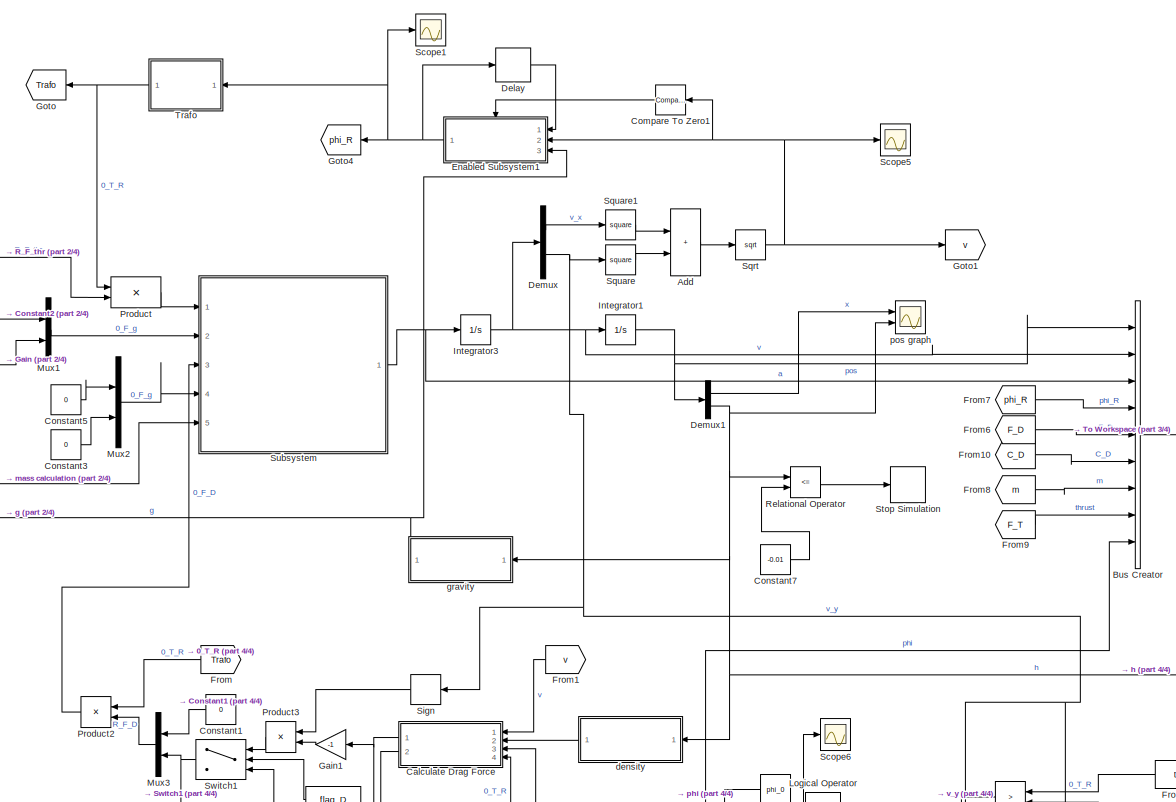
[diagram: root canvas - part 1/4, top center region]
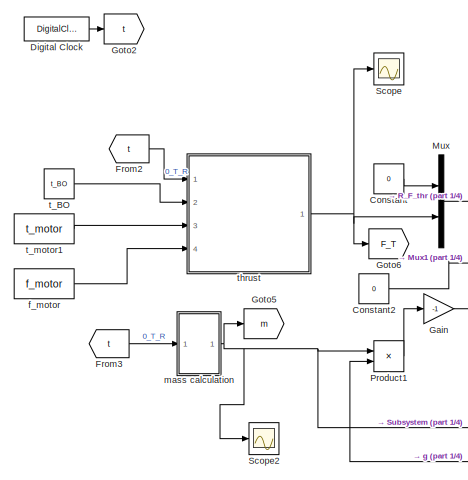
[diagram: root canvas - part 2/4, top left region]
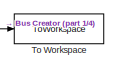
[diagram: root canvas - part 3/4, top right region]
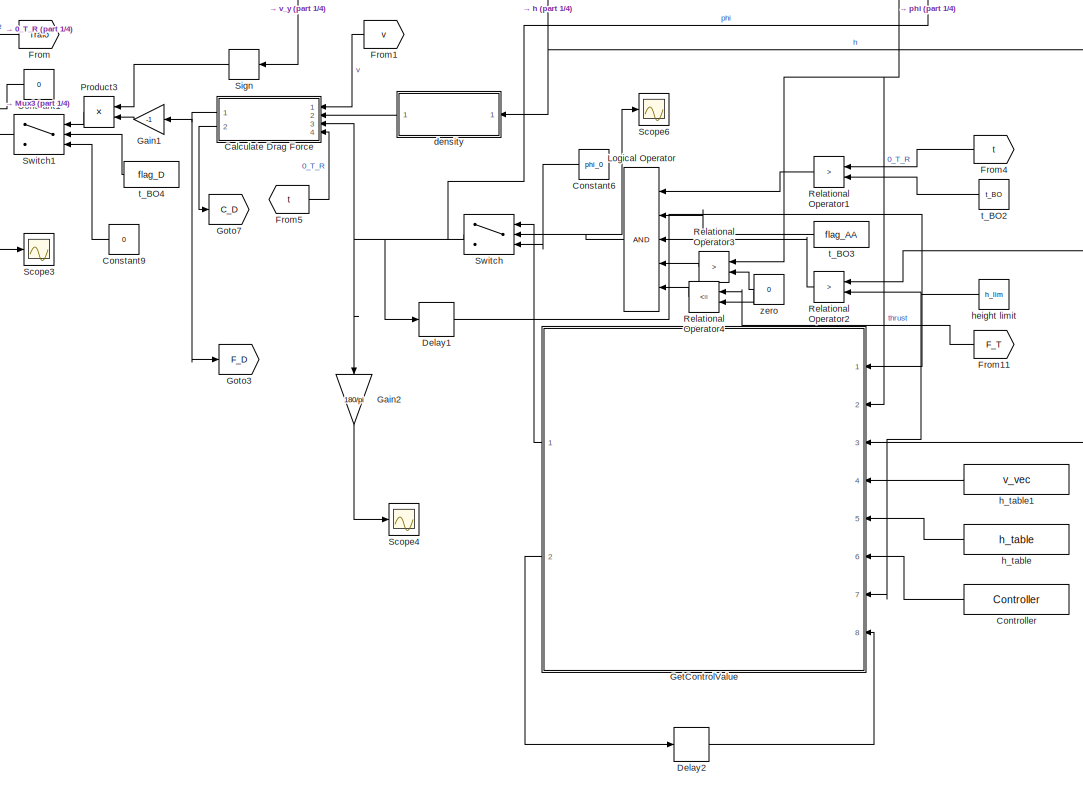
[diagram: root canvas - part 4/4, bottom center region]
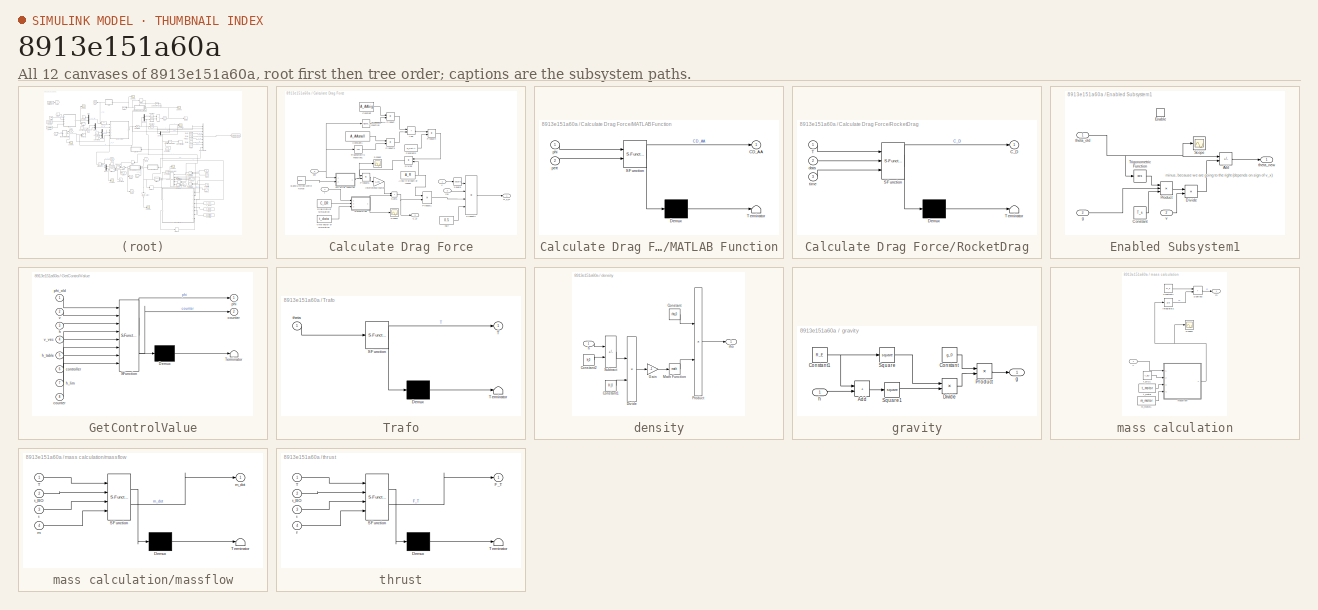
[diagram: thumbnail index - all 12 canvases of the model, root first then tree order]
MODEL slx_8913e151a60a
KIND model
CONFIG AbsTol = auto
CONFIG EnableMultiTasking = off
CONFIG FixedStep = auto
CONFIG MaxStep = auto
CONFIG MinStep = auto
CONFIG RelTol = 1e-3
CONFIG SampleTimeConstraint = Unconstrained
CONFIG SolverName = VariableStepAuto
CONFIG StartTime = 0.0
CONFIG StopTime = 100
BLOCK [Sum] Add
  IconShape = rectangular
  Ports = [2, 1]
BLOCK [BusCreator] Bus Creator
  DisplayOption = bar
  InheritFromInputs = on
  Inputs = 9
  Ports = [9, 1]
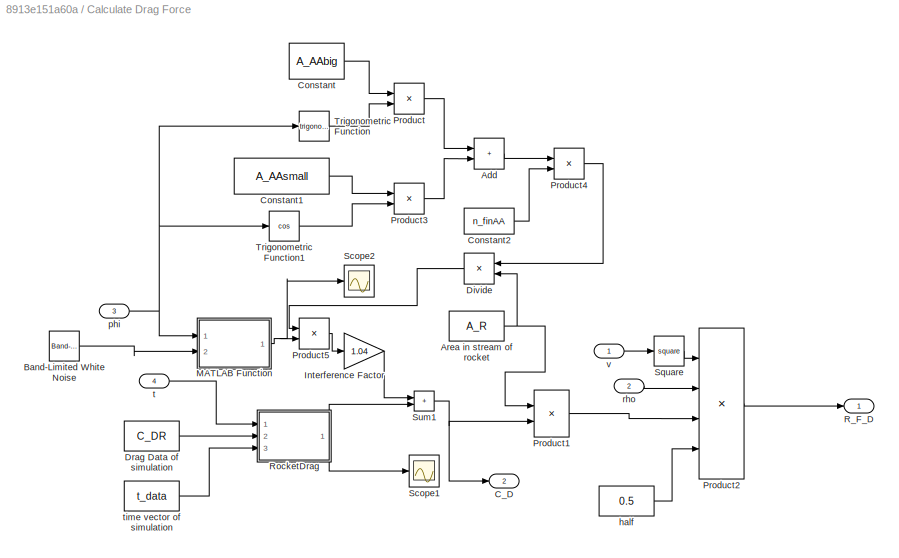
BLOCK [SubSystem] Calculate Drag Force
  Ports = [4, 2]
  RequestExecContextInheritance = off
BLOCK [Sum] Calculate Drag Force/Add
  IconShape = rectangular
  Ports = [2, 1]
BLOCK [Constant] Calculate Drag Force/Area in stream of rocket
  Value = A_R
BLOCK [Reference] Calculate Drag Force/Band-Limited White Noise  REF=simulink/Sources/Band-Limited
White Noise
  Ports = [0, 1]
  SourceBlock = simulink/Sources/Band-Limited\nWhite Noise
  SourceProductBaseCode = SL
  SourceType = Band-Limited White Noise.
BLOCK [Outport] Calculate Drag Force/C_D
  Port = 2
BLOCK [Constant] Calculate Drag Force/Constant
  Value = A_AAbig
BLOCK [Constant] Calculate Drag Force/Constant1
  Value = A_AAsmall
BLOCK [Constant] Calculate Drag Force/Constant2
  Value = n_finAA
BLOCK [Product] Calculate Drag Force/Divide
  Inputs = */
  Ports = [2, 1]
BLOCK [Constant] Calculate Drag Force/Drag Data of simulation
  Value = C_DR
BLOCK [Gain] Calculate Drag Force/Interference Factor
  Gain = 1.04
BLOCK [SubSystem] Calculate Drag Force/MATLAB Function
  ErrorFcn = Stateflow.Translate.translate
  PermitHierarchicalResolution = ExplicitOnly
  Ports = [2, 1]
  RequestExecContextInheritance = off
  SFBlockType = MATLAB Function
  TreatAsAtomicUnit = on
BLOCK [Demux] Calculate Drag Force/MATLAB Function/ Demux 
  Outputs = 1
  Ports = [1, 1]
BLOCK [S-Function] Calculate Drag Force/MATLAB Function/ SFunction 
  EnableBusSupport = on
  FunctionName = sf_sfun
  PortCounts = [2 2]
  Ports = [2, 2]
  SFcnIsStateOwnerBlock = off
  SFunctionDeploymentMode = off
  Tag = Stateflow S-Function 4
BLOCK [Terminator] Calculate Drag Force/MATLAB Function/ Terminator 
BLOCK [Outport] Calculate Drag Force/MATLAB Function/CD_AA
BLOCK [Inport] Calculate Drag Force/MATLAB Function/pert
  Port = 2
BLOCK [Inport] Calculate Drag Force/MATLAB Function/phi
BLOCK [Product] Calculate Drag Force/Product
  Ports = [2, 1]
BLOCK [Product] Calculate Drag Force/Product1
  Ports = [2, 1]
BLOCK [Product] Calculate Drag Force/Product2
  Inputs = 4
  Ports = [4, 1]
BLOCK [Product] Calculate Drag Force/Product3
  Ports = [2, 1]
BLOCK [Product] Calculate Drag Force/Product4
  Ports = [2, 1]
BLOCK [Product] Calculate Drag Force/Product5
  Ports = [2, 1]
BLOCK [Outport] Calculate Drag Force/R_F_D
BLOCK [SubSystem] Calculate Drag Force/RocketDrag
  ErrorFcn = Stateflow.Translate.translate
  PermitHierarchicalResolution = ExplicitOnly
  Ports = [3, 1]
  RequestExecContextInheritance = off
  SFBlockType = MATLAB Function
  TreatAsAtomicUnit = on
BLOCK [Demux] Calculate Drag Force/RocketDrag/ Demux 
  Outputs = 1
  Ports = [1, 1]
BLOCK [S-Function] Calculate Drag Force/RocketDrag/ SFunction 
  EnableBusSupport = on
  FunctionName = sf_sfun
  PortCounts = [3 2]
  Ports = [3, 2]
  SFcnIsStateOwnerBlock = off
  SFunctionDeploymentMode = off
  Tag = Stateflow S-Function 5
BLOCK [Terminator] Calculate Drag Force/RocketDrag/ Terminator 
BLOCK [Outport] Calculate Drag Force/RocketDrag/C_D
BLOCK [Inport] Calculate Drag Force/RocketDrag/T
BLOCK [Inport] Calculate Drag Force/RocketDrag/data
  Port = 2
BLOCK [Inport] Calculate Drag Force/RocketDrag/time
  Port = 3
BLOCK [Scope] Calculate Drag Force/Scope1
  Floating = off
  NumInputPorts = 1
  Ports = [1]
  ScopeSpecificationString = Simulink.scopes.TimeScopeBlockCfg('CurrentConfiguration', extmgr.ConfigurationSet(extmgr.Configuration('Core','General UI',true),extmgr.Configuration('Core','Source UI',true),extmgr.Configuration('Sources','WiredSimulink',true,'DataLoggingVariableName','ScopeData2'),extmgr.Configuration('Visuals','Time Domain',true,'SerializedDisplays',{struct('MinYLimReal','-1.96198','MaxYLimReal','1.96313','YLab...<+1453ch>
BLOCK [Scope] Calculate Drag Force/Scope2
  Floating = off
  NumInputPorts = 1
  Ports = [1]
  ScopeSpecificationString = Simulink.scopes.TimeScopeBlockCfg('CurrentConfiguration', extmgr.ConfigurationSet(extmgr.Configuration('Core','General UI',true),extmgr.Configuration('Core','Source UI',true),extmgr.Configuration('Sources','WiredSimulink',true,'DataLoggingVariableName','ScopeData1'),extmgr.Configuration('Visuals','Time Domain',true,'SerializedDisplays',{struct('MinYLimReal','-1.96198','MaxYLimReal','1.96313','YLab...<+1476ch>
BLOCK [Math] Calculate Drag Force/Square
  Operator = square
  Ports = [1, 1]
BLOCK [Sum] Calculate Drag Force/Sum1
  IconShape = rectangular
  Ports = [2, 1]
BLOCK [Trigonometry] Calculate Drag Force/Trigonometric Function
  Ports = [1, 1]
BLOCK [Trigonometry] Calculate Drag Force/Trigonometric Function1
  Operator = cos
  Ports = [1, 1]
BLOCK [Constant] Calculate Drag Force/half
  Value = 0.5
BLOCK [Inport] Calculate Drag Force/phi
  Port = 3
BLOCK [Inport] Calculate Drag Force/rho
  Port = 2
BLOCK [Inport] Calculate Drag Force/t
  Port = 4
BLOCK [Constant] Calculate Drag Force/time vector of simulation
  Value = t_data
BLOCK [Inport] Calculate Drag Force/v
BLOCK [Reference] Compare To Zero1  REF=simulink/Logic and Bit
Operations/Compare
To Zero
  Ports = [1, 1]
  SourceBlock = simulink/Logic and Bit\nOperations/Compare\nTo Zero
  SourceProductBaseCode = SL
  SourceType = Compare To Zero
BLOCK [Constant] Constant
  Value = 0
BLOCK [Constant] Constant1
  Value = 0
BLOCK [Constant] Constant2
  Value = 0
BLOCK [Constant] Constant3
  Value = 0
BLOCK [Constant] Constant5
  Value = 0
BLOCK [Constant] Constant6
  Value = phi_0
BLOCK [Constant] Constant7
  Value = -0.01
BLOCK [Constant] Constant9
  Value = 0
BLOCK [Constant] Controller
  Value = Controller
BLOCK [Delay] Delay
  DelayLength = 1
  InitialCondition = 0
  InputPortMap = u0
  Ports = [1, 1]
BLOCK [Delay] Delay1
  DelayLength = 1
  InitialCondition = 0
  InputPortMap = u0
  Ports = [1, 1]
BLOCK [Delay] Delay2
  DelayLength = 1
  InitialCondition = 0
  InputPortMap = u0
  Ports = [1, 1]
BLOCK [Demux] Demux
  Outputs = 2
  Ports = [1, 2]
BLOCK [Demux] Demux1
  Outputs = 2
  Ports = [1, 2]
BLOCK [DigitalClock] Digital Clock
  SampleTime = T_s
BLOCK [SubSystem] Enabled Subsystem1
  Ports = [3, 1, 1]
  RequestExecContextInheritance = off
  TreatAsAtomicUnit = on
BLOCK [Sum] Enabled Subsystem1/Add
  IconShape = rectangular
  Inputs = +-
  Ports = [2, 1]
BLOCK [Constant] Enabled Subsystem1/Constant
  Value = T_s
BLOCK [Product] Enabled Subsystem1/Divide
  Inputs = */
  Ports = [2, 1]
BLOCK [EnablePort] Enabled Subsystem1/Enable
  Ports = []
BLOCK [Product] Enabled Subsystem1/Product
  Inputs = 3
  Ports = [3, 1]
BLOCK [Scope] Enabled Subsystem1/Scope
  Floating = off
  NumInputPorts = 1
  Ports = [1]
  ScopeSpecificationString = Simulink.scopes.TimeScopeBlockCfg('CurrentConfiguration', extmgr.ConfigurationSet(extmgr.Configuration('Core','General UI',true),extmgr.Configuration('Core','Source UI',true),extmgr.Configuration('Sources','WiredSimulink',true,'DataLoggingVariableName','ScopeData3'),extmgr.Configuration('Visuals','Time Domain',true,'SerializedDisplays',{struct('MinYLimReal','1.54229','MaxYLimReal','1.60916','YLabe...<+1410ch>
BLOCK [Trigonometry] Enabled Subsystem1/Trigonometric Function
  Operator = cos
  Ports = [1, 1]
BLOCK [Inport] Enabled Subsystem1/g
  Port = 3
BLOCK [Outport] Enabled Subsystem1/theta_new
  InitialOutput = theta_0
BLOCK [Inport] Enabled Subsystem1/theta_old
  NameLocation = top
BLOCK [Inport] Enabled Subsystem1/v
  Port = 2
BLOCK [From] From
  GotoTag = Trafo
BLOCK [From] From1
  GotoTag = v
BLOCK [From] From10
  GotoTag = C_D
BLOCK [From] From11
  GotoTag = F_T
BLOCK [From] From2
  GotoTag = t
BLOCK [From] From3
  GotoTag = t
BLOCK [From] From4
  GotoTag = t
BLOCK [From] From5
  GotoTag = t
BLOCK [From] From6
  GotoTag = F_D
BLOCK [From] From7
  GotoTag = phi_R
BLOCK [From] From8
  GotoTag = m
BLOCK [From] From9
  GotoTag = F_T
BLOCK [Gain] Gain
  Gain = -1
BLOCK [Gain] Gain1
  Gain = -1
BLOCK [Gain] Gain2
  Gain = 180/pi
  NameLocation = left
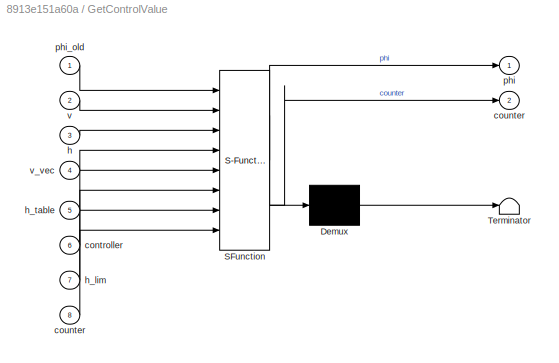
BLOCK [SubSystem] GetControlValue
  ErrorFcn = Stateflow.Translate.translate
  PermitHierarchicalResolution = ExplicitOnly
  Ports = [8, 2]
  RequestExecContextInheritance = off
  SFBlockType = MATLAB Function
  TreatAsAtomicUnit = on
BLOCK [Demux] GetControlValue/ Demux 
  Outputs = 1
  Ports = [1, 1]
BLOCK [S-Function] GetControlValue/ SFunction 
  EnableBusSupport = on
  FunctionName = sf_sfun
  PortCounts = [8 3]
  Ports = [8, 3]
  SFcnIsStateOwnerBlock = off
  SFunctionDeploymentMode = off
  Tag = Stateflow S-Function 6
BLOCK [Terminator] GetControlValue/ Terminator 
BLOCK [Inport] GetControlValue/controller
  Port = 6
BLOCK [Outport] GetControlValue/counter
  Port = 2
BLOCK [Inport] GetControlValue/counter 
  Port = 8
BLOCK [Inport] GetControlValue/h
  Port = 3
BLOCK [Inport] GetControlValue/h_lim
  Port = 7
BLOCK [Inport] GetControlValue/h_table
  Port = 5
BLOCK [Outport] GetControlValue/phi
BLOCK [Inport] GetControlValue/phi_old
BLOCK [Inport] GetControlValue/v
  Port = 2
BLOCK [Inport] GetControlValue/v_vec
  Port = 4
BLOCK [Goto] Goto
  GotoTag = Trafo
BLOCK [Goto] Goto1
  GotoTag = v
BLOCK [Goto] Goto2
  GotoTag = t
BLOCK [Goto] Goto3
  GotoTag = F_D
BLOCK [Goto] Goto4
  GotoTag = phi_R
BLOCK [Goto] Goto5
  GotoTag = m
BLOCK [Goto] Goto6
  GotoTag = F_T
BLOCK [Goto] Goto7
  GotoTag = C_D
BLOCK [Integrator] Integrator1
  Ports = [1, 1]
BLOCK [Integrator] Integrator3
  Ports = [1, 1]
BLOCK [Logic] Logical Operator
  AllPortsSameDT = off
  Inputs = 5
  OutDataTypeStr = boolean
  Ports = [5, 1]
BLOCK [Mux] Mux
  DisplayOption = bar
  Inputs = 2
  Ports = [2, 1]
BLOCK [Mux] Mux1
  DisplayOption = bar
  Inputs = 2
  Ports = [2, 1]
BLOCK [Mux] Mux2
  DisplayOption = bar
  Inputs = 2
  Ports = [2, 1]
BLOCK [Mux] Mux3
  DisplayOption = bar
  Inputs = 2
  Ports = [2, 1]
BLOCK [Product] Product
  Multiplication = Matrix(*)
  Ports = [2, 1]
BLOCK [Product] Product1
  Ports = [2, 1]
BLOCK [Product] Product2
  Multiplication = Matrix(*)
  Ports = [2, 1]
BLOCK [Product] Product3
  Ports = [2, 1]
BLOCK [RelationalOperator] Relational Operator
  InputSameDT = off
  Operator = <=
  OutDataTypeStr = boolean
  Ports = [2, 1]
  RndMeth = Simplest
BLOCK [RelationalOperator] Relational Operator1
  InputSameDT = off
  Operator = >
  OutDataTypeStr = boolean
  Ports = [2, 1]
  RndMeth = Simplest
BLOCK [RelationalOperator] Relational Operator2
  InputSameDT = off
  Operator = >
  OutDataTypeStr = boolean
  Ports = [2, 1]
  RndMeth = Simplest
BLOCK [RelationalOperator] Relational Operator3
  InputSameDT = off
  Operator = >
  OutDataTypeStr = boolean
  Ports = [2, 1]
  RndMeth = Simplest
BLOCK [RelationalOperator] Relational Operator4
  InputSameDT = off
  Operator = <=
  OutDataTypeStr = boolean
  Ports = [2, 1]
  RndMeth = Simplest
BLOCK [Scope] Scope
  Floating = off
  NumInputPorts = 1
  Ports = [1]
  ScopeSpecificationString = Simulink.scopes.TimeScopeBlockCfg('CurrentConfiguration', extmgr.ConfigurationSet(extmgr.Configuration('Core','General UI',true),extmgr.Configuration('Core','Source UI',true),extmgr.Configuration('Sources','WiredSimulink',true,'DataLoggingVariableName','ScopeData3'),extmgr.Configuration('Visuals','Time Domain',true,'SerializedDisplays',{struct('MinYLimReal','-587.24769','MaxYLimReal','5285.22921',...<+1427ch>
BLOCK [Scope] Scope1
  Floating = off
  NumInputPorts = 1
  Ports = [1]
  ScopeSpecificationString = Simulink.scopes.TimeScopeBlockCfg('CurrentConfiguration', extmgr.ConfigurationSet(extmgr.Configuration('Core','General UI',true),extmgr.Configuration('Core','Source UI',true),extmgr.Configuration('Sources','WiredSimulink',true,'DataLoggingVariableName','ScopeData4'),extmgr.Configuration('Visuals','Time Domain',true,'SerializedDisplays',{struct('MinYLimReal','-1.96198','MaxYLimReal','1.96313','YLab...<+1461ch>
BLOCK [Scope] Scope2
  Floating = off
  NumInputPorts = 1
  Ports = [1]
  ScopeSpecificationString = Simulink.scopes.TimeScopeBlockCfg('CurrentConfiguration', extmgr.ConfigurationSet(extmgr.Configuration('Core','General UI',true),extmgr.Configuration('Core','Source UI',true),extmgr.Configuration('Sources','WiredSimulink',true,'DataLoggingVariableName','ScopeData1'),extmgr.Configuration('Visuals','Time Domain',true,'SerializedDisplays',{struct('MinYLimReal','21.25369','MaxYLimReal','21.73727','YLa...<+1466ch>
BLOCK [Scope] Scope3
  Floating = off
  NumInputPorts = 1
  Ports = [1]
  ScopeSpecificationString = Simulink.scopes.TimeScopeBlockCfg('CurrentConfiguration', extmgr.ConfigurationSet(extmgr.Configuration('Core','General UI',true),extmgr.Configuration('Core','Source UI',true),extmgr.Configuration('Sources','WiredSimulink',true,'DataLoggingVariableName','ScopeData3'),extmgr.Configuration('Visuals','Time Domain',true,'SerializedDisplays',{struct('MinYLimReal','-4167.88576','MaxYLimReal','699.93277',...<+1471ch>
BLOCK [Scope] Scope4
  Floating = off
  NumInputPorts = 1
  Ports = [1]
  ScopeSpecificationString = Simulink.scopes.TimeScopeBlockCfg('CurrentConfiguration', extmgr.ConfigurationSet(extmgr.Configuration('Core','General UI',true),extmgr.Configuration('Core','Source UI',true),extmgr.Configuration('Sources','WiredSimulink',true,'DataLoggingVariableName','ScopeData1'),extmgr.Configuration('Visuals','Time Domain',true,'SerializedDisplays',{struct('MinYLimReal','-1.00000','MaxYLimReal','1.00000','YLab...<+1518ch>
BLOCK [Scope] Scope5
  Floating = off
  NumInputPorts = 1
  Ports = [1]
  ScopeSpecificationString = Simulink.scopes.TimeScopeBlockCfg('CurrentConfiguration', extmgr.ConfigurationSet(extmgr.Configuration('Core','General UI',true),extmgr.Configuration('Core','Source UI',true),extmgr.Configuration('Sources','WiredSimulink',true,'DataLoggingVariableName','ScopeData1'),extmgr.Configuration('Visuals','Time Domain',true,'SerializedDisplays',{struct('MinYLimReal','-73.96891','MaxYLimReal','665.72021','Y...<+1457ch>
BLOCK [Scope] Scope6
  Floating = off
  NumInputPorts = 1
  Ports = [1]
  ScopeSpecificationString = Simulink.scopes.TimeScopeBlockCfg('CurrentConfiguration', extmgr.ConfigurationSet(extmgr.Configuration('Core','General UI',true),extmgr.Configuration('Core','Source UI',true),extmgr.Configuration('Sources','WiredSimulink',true,'DataLoggingVariableName','ScopeData1'),extmgr.Configuration('Visuals','Time Domain',true,'SerializedDisplays',{struct('MinYLimReal','-1.00000','MaxYLimReal','1.00000','YLab...<+1484ch>
BLOCK [Signum] Sign
BLOCK [Sqrt] Sqrt
BLOCK [Math] Square
  Operator = square
  Ports = [1, 1]
BLOCK [Math] Square1
  Operator = square
  Ports = [1, 1]
BLOCK [Stop] Stop Simulation
BLOCK [SubSystem] Subsystem
  PortSchema = {"entries":[{"content":{"sides":[{"content":{"connectorIds":["In1","In2","In4","In3","In5"]},"type":"ConnectorPlacement.EquallySpacedRectSide","uuid":"9ef3e48b-891b-4d0d-a708-ee121c0097dd"},{"content":{"connectorIds":["Out1"],"side":"RIGHT"},"type":"ConnectorPlacement.EquallySpacedRectSide","uuid":"fe012b3b-856e-4c20-af45-176b50db60e5"},{"content":{"connectorIds":[],"side":"TOP"},"type":"Connector...<+264ch>
  Ports = [5, 1]
  ReferencedSubsystem = acceleration
  RequestExecContextInheritance = off
BLOCK [Switch] Switch
  Criteria = u2 ~= 0
  InputSameDT = off
  SaturateOnIntegerOverflow = off
BLOCK [Switch] Switch1
  Criteria = u2 > Threshold
  InputSameDT = off
  SaturateOnIntegerOverflow = off
BLOCK [ToWorkspace] To Workspace
  FixptAsFi = on
  MaxDataPoints = inf
  Ports = [1]
  SampleTime = -1
  SaveFormat = Timeseries
  VariableName = SimData
BLOCK [SubSystem] Trafo
  ErrorFcn = Stateflow.Translate.translate
  PermitHierarchicalResolution = ExplicitOnly
  Ports = [1, 1]
  RequestExecContextInheritance = off
  SFBlockType = MATLAB Function
  TreatAsAtomicUnit = on
BLOCK [Demux] Trafo/ Demux 
  Outputs = 1
  Ports = [1, 1]
BLOCK [S-Function] Trafo/ SFunction 
  EnableBusSupport = on
  FunctionName = sf_sfun
  PortCounts = [1 2]
  Ports = [1, 2]
  SFcnIsStateOwnerBlock = off
  SFunctionDeploymentMode = off
  Tag = Stateflow S-Function 3
BLOCK [Terminator] Trafo/ Terminator 
BLOCK [Outport] Trafo/T
BLOCK [Inport] Trafo/theta
BLOCK [SubSystem] density
  Ports = [1, 1]
  RequestExecContextInheritance = off
BLOCK [Constant] density/Constant
  Value = rho_0
  VectorParams1D = off
BLOCK [Constant] density/Constant1
  Value = H_0
  VectorParams1D = off
BLOCK [Constant] density/Constant2
  Value = h_0
  VectorParams1D = off
BLOCK [Product] density/Divide
  Inputs = */
  Ports = [2, 1]
BLOCK [Gain] density/Gain
  Gain = -1
BLOCK [Math] density/Math Function
  Ports = [1, 1]
BLOCK [Product] density/Product
  Ports = [2, 1]
BLOCK [Sum] density/Subtract
  IconShape = rectangular
  Inputs = +-
  Ports = [2, 1]
BLOCK [Inport] density/h
BLOCK [Outport] density/rho
BLOCK [Constant] f_motor
  Value = f_motor
BLOCK [SubSystem] gravity
  Ports = [1, 1]
  RequestExecContextInheritance = off
BLOCK [Sum] gravity/Add
  IconShape = rectangular
  Ports = [2, 1]
BLOCK [Constant] gravity/Constant
  Value = g_0
BLOCK [Constant] gravity/Constant1
  Value = R_E
BLOCK [Product] gravity/Divide
  Inputs = */
  Ports = [2, 1]
BLOCK [Product] gravity/Product
  Ports = [2, 1]
BLOCK [Math] gravity/Square
  Operator = square
  Ports = [1, 1]
BLOCK [Math] gravity/Square1
  Operator = square
  Ports = [1, 1]
BLOCK [Outport] gravity/g
BLOCK [Inport] gravity/h
BLOCK [Constant] h_table
  Value = h_table
BLOCK [Constant] h_table1
  Value = v_vec
BLOCK [Constant] height limit
  Value = h_lim
BLOCK [SubSystem] mass calculation
  Ports = [1, 1]
  RequestExecContextInheritance = off
BLOCK [Constant] mass calculation/Constant4
  Value = m_0
BLOCK [Integrator] mass calculation/Integrator2
  Ports = [1, 1]
BLOCK [Scope] mass calculation/Scope7
  Floating = off
  NumInputPorts = 1
  Ports = [1]
  ScopeSpecificationString = Simulink.scopes.TimeScopeBlockCfg('CurrentConfiguration', extmgr.ConfigurationSet(extmgr.Configuration('Core','General UI',true),extmgr.Configuration('Core','Source UI',true),extmgr.Configuration('Sources','WiredSimulink',true,'DataLoggingVariableName','ScopeData3'),extmgr.Configuration('Visuals','Time Domain',true,'SerializedDisplays',{struct('MinYLimReal','-2.54661','MaxYLimReal','-0.26724','YLa...<+1453ch>
BLOCK [Sum] mass calculation/Subtract
  IconShape = rectangular
  Ports = [2, 1]
BLOCK [Inport] mass calculation/T
BLOCK [Outport] mass calculation/m
BLOCK [Constant] mass calculation/m_motor1
  Value = m_motor
BLOCK [SubSystem] mass calculation/massflow
  ErrorFcn = Stateflow.Translate.translate
  PermitHierarchicalResolution = ExplicitOnly
  Ports = [4, 1]
  RequestExecContextInheritance = off
  SFBlockType = MATLAB Function
  TreatAsAtomicUnit = on
BLOCK [Demux] mass calculation/massflow/ Demux 
  Outputs = 1
  Ports = [1, 1]
BLOCK [S-Function] mass calculation/massflow/ SFunction 
  EnableBusSupport = on
  FunctionName = sf_sfun
  PortCounts = [4 2]
  Ports = [4, 2]
  SFcnIsStateOwnerBlock = off
  SFunctionDeploymentMode = off
  Tag = Stateflow S-Function 2
BLOCK [Terminator] mass calculation/massflow/ Terminator 
BLOCK [Inport] mass calculation/massflow/T
BLOCK [Inport] mass calculation/massflow/m
  Port = 4
BLOCK [Outport] mass calculation/massflow/m_dot
BLOCK [Inport] mass calculation/massflow/t
  Port = 3
BLOCK [Inport] mass calculation/massflow/t_BO
  Port = 2
BLOCK [Constant] mass calculation/t_BO1
  Value = t_BO
BLOCK [Constant] mass calculation/t_motor
  Value = t_motor
BLOCK [Scope] pos graph
  Floating = off
  NumInputPorts = 2
  Ports = [2]
  ScopeSpecificationString = Simulink.scopes.TimeScopeBlockCfg('CurrentConfiguration', extmgr.ConfigurationSet(extmgr.Configuration('Core','General UI',true),extmgr.Configuration('Core','Source UI',true),extmgr.Configuration('Sources','WiredSimulink',true),extmgr.Configuration('Visuals','Time Domain',true,'SerializedDisplays',{struct('MinYLimReal','-576.75651','MaxYLimReal','5190.80128','YLabelReal','','MinYLimMag',' 0.00000'...<+1459ch>
BLOCK [Constant] t_BO
  Value = t_BO
BLOCK [Constant] t_BO2
  Value = t_BO
BLOCK [Constant] t_BO3
  Value = flag_AA
BLOCK [Constant] t_BO4
  Value = flag_D
BLOCK [Constant] t_motor1
  Value = t_motor
BLOCK [SubSystem] thrust
  ErrorFcn = Stateflow.Translate.translate
  PermitHierarchicalResolution = ExplicitOnly
  Ports = [4, 1]
  RequestExecContextInheritance = off
  SFBlockType = MATLAB Function
  TreatAsAtomicUnit = on
BLOCK [Demux] thrust/ Demux 
  Outputs = 1
  Ports = [1, 1]
BLOCK [S-Function] thrust/ SFunction 
  EnableBusSupport = on
  FunctionName = sf_sfun
  PortCounts = [4 2]
  Ports = [4, 2]
  SFcnIsStateOwnerBlock = off
  SFunctionDeploymentMode = off
  Tag = Stateflow S-Function 1
BLOCK [Terminator] thrust/ Terminator 
BLOCK [Outport] thrust/F_T
BLOCK [Inport] thrust/T
BLOCK [Inport] thrust/f
  Port = 4
BLOCK [Inport] thrust/t
  Port = 3
BLOCK [Inport] thrust/t_BO
  Port = 2
BLOCK [Constant] zero
  Value = 0
ANNOTATION Enabled Subsystem1: minus, because we are going to the right (depends on sign of v_x)
LINE Add:1 -> Sqrt:1
LINE Bus Creator:1 -> To Workspace:1
LINE Calculate Drag Force/Add:1 -> Calculate Drag Force/Product4:1
NET Calculate Drag Force/Area in stream of rocket:1 -> Calculate Drag Force/Divide:2, Calculate Drag Force/Product1:1
LINE Calculate Drag Force/Band-Limited White Noise:1 -> Calculate Drag Force/MATLAB Function:2
LINE Calculate Drag Force/Constant1:1 -> Calculate Drag Force/Product3:1
LINE Calculate Drag Force/Constant2:1 -> Calculate Drag Force/Product4:2
LINE Calculate Drag Force/Constant:1 -> Calculate Drag Force/Product:1
LINE Calculate Drag Force/Divide:1 -> Calculate Drag Force/Product5:1
LINE Calculate Drag Force/Drag Data of simulation:1 -> Calculate Drag Force/RocketDrag:2
LINE Calculate Drag Force/Interference Factor:1 -> Calculate Drag Force/Sum1:1
NET Calculate Drag Force/MATLAB Function:1 -> Calculate Drag Force/Product5:2, Calculate Drag Force/Scope2:1
LINE Calculate Drag Force/Product1:1 -> Calculate Drag Force/Product2:3
LINE Calculate Drag Force/Product2:1 -> Calculate Drag Force/R_F_D:1
LINE Calculate Drag Force/Product3:1 -> Calculate Drag Force/Add:2
LINE Calculate Drag Force/Product4:1 -> Calculate Drag Force/Divide:1
LINE Calculate Drag Force/Product5:1 -> Calculate Drag Force/Interference Factor:1
LINE Calculate Drag Force/Product:1 -> Calculate Drag Force/Add:1
NET Calculate Drag Force/RocketDrag:1 -> Calculate Drag Force/Scope1:1, Calculate Drag Force/Sum1:2
LINE Calculate Drag Force/Square:1 -> Calculate Drag Force/Product2:1
NET Calculate Drag Force/Sum1:1 -> Calculate Drag Force/C_D:1, Calculate Drag Force/Product1:2
LINE Calculate Drag Force/Trigonometric Function1:1 -> Calculate Drag Force/Product3:2
LINE Calculate Drag Force/Trigonometric Function:1 -> Calculate Drag Force/Product:2
LINE Calculate Drag Force/half:1 -> Calculate Drag Force/Product2:4
NET Calculate Drag Force/phi:1 -> Calculate Drag Force/MATLAB Function:1, Calculate Drag Force/Trigonometric Function1:1, Calculate Drag Force/Trigonometric Function:1
LINE Calculate Drag Force/rho:1 -> Calculate Drag Force/Product2:2
LINE Calculate Drag Force/t:1 -> Calculate Drag Force/RocketDrag:1
LINE Calculate Drag Force/time vector of simulation:1 -> Calculate Drag Force/RocketDrag:3
LINE Calculate Drag Force/v:1 -> Calculate Drag Force/Square:1
NET Calculate Drag Force:1 -> Gain1:1, Goto3:1
LINE Calculate Drag Force:2 -> Goto7:1
LINE Compare To Zero1:1 -> Enabled Subsystem1:enable
LINE Constant1:1 -> Mux3:1
LINE Constant2:1 -> Mux1:1
LINE Constant3:1 -> Mux2:2
LINE Constant5:1 -> Mux2:1
LINE Constant6:1 -> Switch:3
LINE Constant7:1 -> Relational Operator:2
LINE Constant9:1 -> Switch1:3
LINE Constant:1 -> Mux:1
LINE Controller:1 -> GetControlValue:6
LINE Delay1:1 -> GetControlValue:1
LINE Delay2:1 -> GetControlValue:8
LINE Delay:1 -> Enabled Subsystem1:1
LINE Demux1:1 -> pos graph:1
NET Demux1:2 -> GetControlValue:3, Relational Operator2:1, Relational Operator:1, density:1, gravity:1, pos graph:2
LINE Demux:1 -> Square1:1
NET Demux:2 -> GetControlValue:2, Relational Operator3:1, Sign:1, Square:1
LINE Digital Clock:1 -> Goto2:1
LINE Enabled Subsystem1/Add:1 -> Enabled Subsystem1/theta_new:1
LINE Enabled Subsystem1/Constant:1 -> Enabled Subsystem1/Product:3
LINE Enabled Subsystem1/Divide:1 -> Enabled Subsystem1/Add:2
LINE Enabled Subsystem1/Product:1 -> Enabled Subsystem1/Divide:1
LINE Enabled Subsystem1/Trigonometric Function:1 -> Enabled Subsystem1/Product:1
LINE Enabled Subsystem1/g:1 -> Enabled Subsystem1/Product:2
NET Enabled Subsystem1/theta_old:1 -> Enabled Subsystem1/Add:1, Enabled Subsystem1/Scope:1, Enabled Subsystem1/Trigonometric Function:1
LINE Enabled Subsystem1/v:1 -> Enabled Subsystem1/Divide:2
NET Enabled Subsystem1:1 -> Delay:1, Goto4:1, Scope1:1, Trafo:1
LINE From10:1 -> Bus Creator:6
LINE From11:1 -> Relational Operator4:1
LINE From1:1 -> Calculate Drag Force:1
LINE From2:1 -> thrust:1
LINE From3:1 -> mass calculation:1
LINE From4:1 -> Relational Operator1:1
LINE From5:1 -> Calculate Drag Force:4
LINE From6:1 -> Bus Creator:5
LINE From7:1 -> Bus Creator:4
LINE From8:1 -> Bus Creator:7
LINE From9:1 -> Bus Creator:8
LINE From:1 -> Product2:1
LINE Gain1:1 -> Product3:2
LINE Gain2:1 -> Scope4:1
LINE Gain:1 -> Mux1:2
LINE GetControlValue:1 -> Switch:1
LINE GetControlValue:2 -> Delay2:1
NET Integrator1:1 -> Bus Creator:1, Demux1:1
NET Integrator3:1 -> Bus Creator:2, Demux:1, Integrator1:1
NET Logical Operator:1 -> Scope6:1, Switch:2
LINE Mux1:1 -> Subsystem:2
LINE Mux2:1 -> Subsystem:4
LINE Mux3:1 -> Product2:2
LINE Mux:1 -> Product:2
LINE Product1:1 -> Gain:1
LINE Product2:1 -> Subsystem:3
LINE Product3:1 -> Switch1:1
LINE Product:1 -> Subsystem:1
LINE Relational Operator1:1 -> Logical Operator:1
LINE Relational Operator2:1 -> Logical Operator:3
LINE Relational Operator3:1 -> Logical Operator:4
LINE Relational Operator4:1 -> Logical Operator:5
LINE Relational Operator:1 -> Stop Simulation:1
LINE Sign:1 -> Product3:1
NET Sqrt:1 -> Compare To Zero1:1, Enabled Subsystem1:2, Goto1:1, Scope5:1
LINE Square1:1 -> Add:1
LINE Square:1 -> Add:2
NET Subsystem:1 -> Bus Creator:3, Integrator3:1
NET Switch1:1 -> Mux3:2, Scope3:1
NET Switch:1 -> Bus Creator:9, Calculate Drag Force:3, Delay1:1, Gain2:1
NET Trafo:1 -> Goto:1, Product:1
LINE density/Constant1:1 -> density/Divide:2
LINE density/Constant2:1 -> density/Subtract:2
LINE density/Constant:1 -> density/Product:1
LINE density/Divide:1 -> density/Gain:1
LINE density/Gain:1 -> density/Math Function:1
LINE density/Math Function:1 -> density/Product:2
LINE density/Product:1 -> density/rho:1
LINE density/Subtract:1 -> density/Divide:1
LINE density/h:1 -> density/Subtract:1
LINE density:1 -> Calculate Drag Force:2
LINE f_motor:1 -> thrust:4
LINE gravity/Add:1 -> gravity/Square1:1
NET gravity/Constant1:1 -> gravity/Add:1, gravity/Square:1
LINE gravity/Constant:1 -> gravity/Product:1
LINE gravity/Divide:1 -> gravity/Product:2
LINE gravity/Product:1 -> gravity/g:1
LINE gravity/Square1:1 -> gravity/Divide:2
LINE gravity/Square:1 -> gravity/Divide:1
LINE gravity/h:1 -> gravity/Add:2
NET gravity:1 -> Enabled Subsystem1:3, Product1:2
LINE h_table1:1 -> GetControlValue:4
LINE h_table:1 -> GetControlValue:5
NET height limit:1 -> GetControlValue:7, Relational Operator2:2
LINE mass calculation/Constant4:1 -> mass calculation/Subtract:1
LINE mass calculation/Integrator2:1 -> mass calculation/Subtract:2
LINE mass calculation/Subtract:1 -> mass calculation/m:1
LINE mass calculation/T:1 -> mass calculation/massflow:1
LINE mass calculation/m_motor1:1 -> mass calculation/massflow:4
NET mass calculation/massflow:1 -> mass calculation/Integrator2:1, mass calculation/Scope7:1
LINE mass calculation/t_BO1:1 -> mass calculation/massflow:2
LINE mass calculation/t_motor:1 -> mass calculation/massflow:3
NET mass calculation:1 -> Goto5:1, Product1:1, Scope2:1, Subsystem:5
LINE t_BO2:1 -> Relational Operator1:2
LINE t_BO3:1 -> Logical Operator:2
LINE t_BO4:1 -> Switch1:2
LINE t_BO:1 -> thrust:2
LINE t_motor1:1 -> thrust:3
NET thrust:1 -> Goto6:1, Mux:2, Scope:1
NET zero:1 -> Relational Operator3:2, Relational Operator4:2
note: NET lines group one-source signal fan-out (src -> all destinations, sorted); 1:1 wires keep LINE
CHART thrust states=1 transitions=1
  STATE_LABEL 'eML_blk_kernel()'
  STATE_LABEL 'SCRIPT:\nfunction F_T = thrust(T,t_BO,t,f)\n% this is an interpolation of the thrust for a certain rocket motor:\n% O3400\n%Inputs: Time T to evaluate, time of burnout of motor, t is time arre of\n%motor test, f is thrust array of motor test\n%Output: thrust at time T in N:  F_T(T)\nF_T = 0;\n    if(T <= max(t))\n\n        % interpolate:\n        t_delta = T-t;\n        [min_t,idx] = min(abs(t_delta));\n\n     ...<+291ch>'
CHART mass calculation/massflow states=1 transitions=1
  STATE_LABEL 'eML_blk_kernel()'
  STATE_LABEL 'SCRIPT:\nfunction m_dot = massflow(T,t_BO,t,m)\n% this is an interpolation of the massflow for a certain rocket motor:\n% O3400\n%Inputs: Time T to evaluate, time of burnout of motor, t is time array of\n%motor test, m is mass array of motor test\n%Output: massflow at time T in kg:  m_dot(T)\nm_dot = 0;\nif(T <= max(t))\n\n    m_dot_arr = [0];\n\n    for i=2:length(t)\n        m_dot_arr = [m_dot_arr, (m(i)-m(i...<+398ch>'
CHART Trafo states=1 transitions=1
  STATE_LABEL 'eML_blk_kernel()'
  STATE_LABEL 'SCRIPT:\nfunction T = Trafo(theta)\n %Transformation from the rocket coordinate system to the world system\n %(x,y)\n %Theta defines the angle between the rocket axis and the ground, defined\n %positive anticlockwise\n T = [sin(theta), cos(theta);\n     -cos(theta),sin(theta)];\nend\n\n'
CHART Calculate Drag Force/MATLAB Function states=1 transitions=1
  STATE_LABEL 'eML_blk_kernel()'
  STATE_LABEL 'SCRIPT:\nfunction CD_AA = fcn(phi,pert)\n\n\n%inspiration:\n    %https://www.researchgate.net/publication/278049906_Experimental_Investigation_on_the_Performance_of_NACA_4412_Aerofoil_with_Curved_Leading_Edge_Planform/figures?lo=1\n    %https://www.grc.nasa.gov/www/k-12/rocket/shaped.html\n% rng(\'shuffle\');\n%correct angle\n\n\nif(phi > pi)\n    disp("Angle phi of the active aero fins is wrong. Too big.");\n  ...<+781ch>'
CHART Calculate Drag Force/RocketDrag states=1 transitions=1
  STATE_LABEL 'eML_blk_kernel()'
  STATE_LABEL 'SCRIPT:\nfunction C_D = RocketDrag(T,data,time)\n% this is an interpolation of the drag coefficient of a simulation with RAS\n% Aero II\n%Inputs: Time T to evaluate, dragdata, time vector of the recorded data\n%Output: coefficient of drag C_D\n% l = length(time);\nif(T>max(time))\n%     C_D = mean(data(round(4/5*l):end));\n    C_D = mean(data(end));\n    return;\nend\n\n\n    % interpolate:\n    t_delta = T-time...<+313ch>'
CHART GetControlValue states=1 transitions=1
  STATE_LABEL 'eML_blk_kernel()'
  STATE_LABEL 'SCRIPT:\nfunction [phi,counter] = fcn(phi_old,v,h,v_vec,h_table,controller,h_lim,counter)\n\n    phi = phi_old;\n    h_idx = [];\n\nif(h<h_lim)\n    return;\nend\n\nif(v > v_vec(1)) %bigger than highest possible value -> brake as hard as possible\n    phi = pi/2;\n    return;\nend\n\n% [deltav,v_idx] = min((v-v_vec).^2);\n\n% if(v_vec(v_idx) < v && v_idx ~= 0) %length(v_vec)) %%only switch phi value, if new v is b...<+2139ch>'
CHART  states=0 transitions=0
CHART  states=0 transitions=0
CHART  states=0 transitions=0
CHART  states=0 transitions=0
CHART  states=0 transitions=0
CHART  states=0 transitions=0
